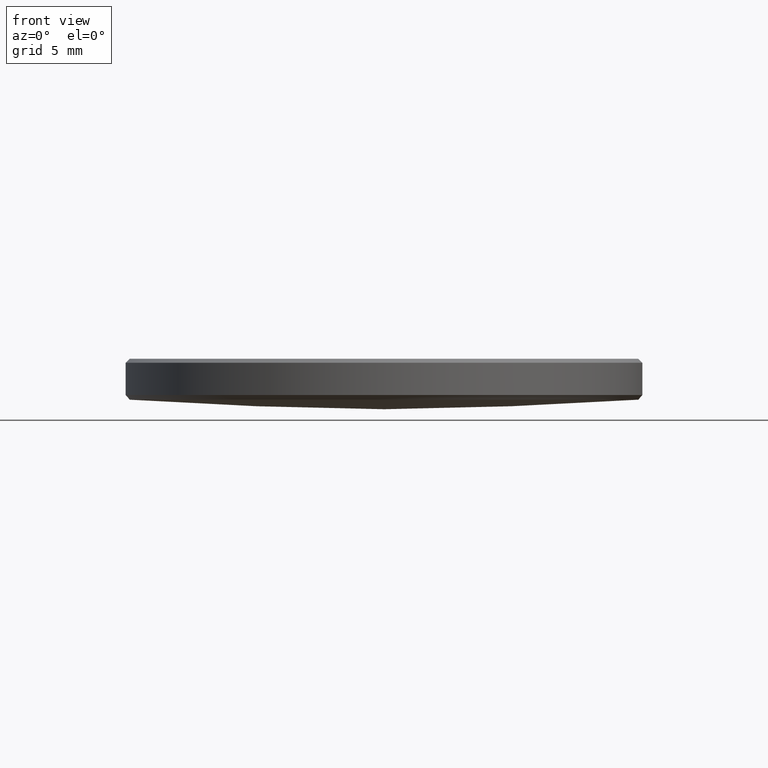
[diagram: clean part render]
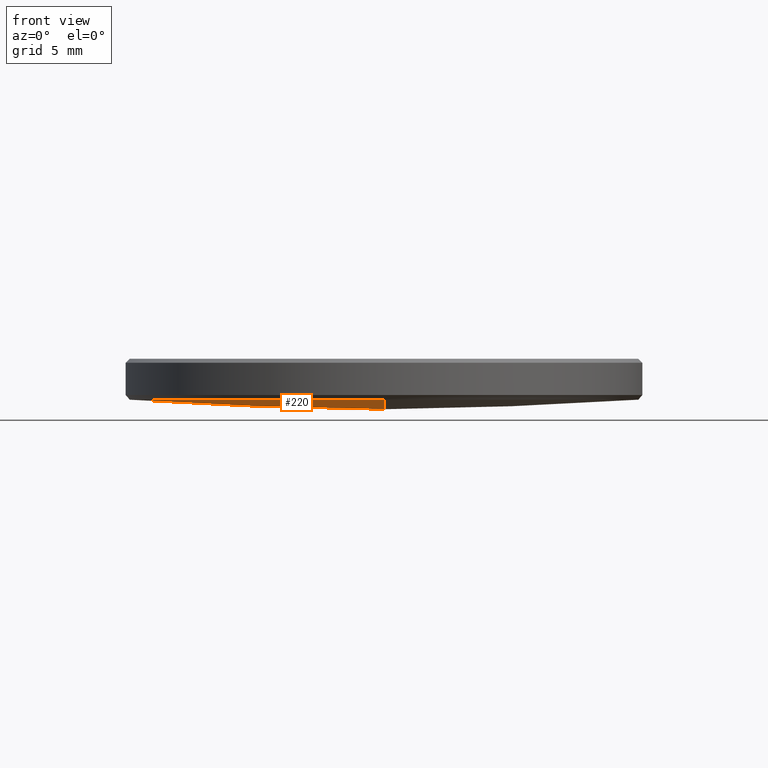
[diagram: same view with one face highlighted and labeled with its STEP entity id]
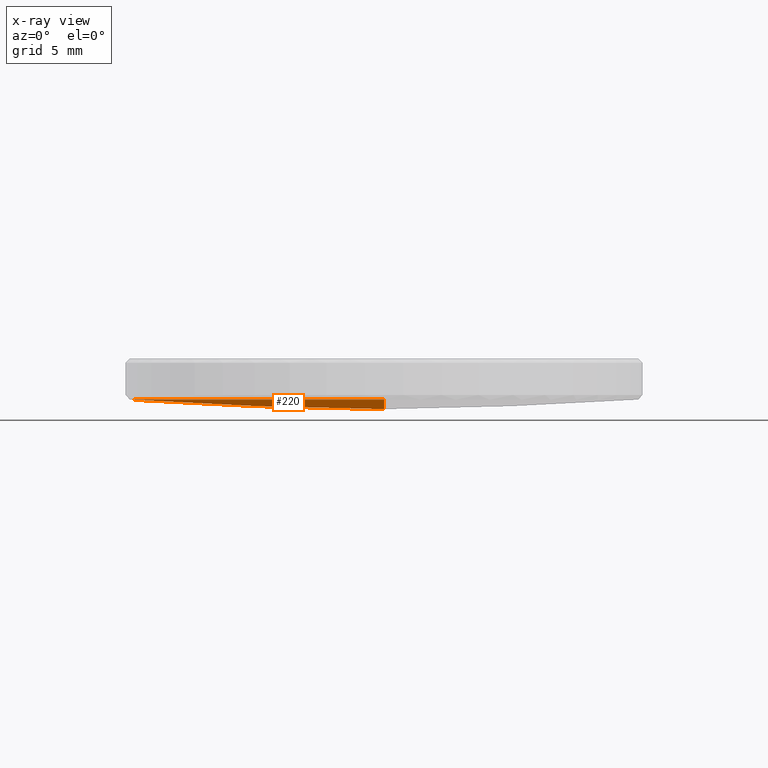
[diagram: x-ray of the same camera — body ghosted, the highlighted face saturated]
A machine part, front view. The second image highlights one B-rep face of the part: STEP entity #220.
The next image is the same camera in x-ray: the body ghosted, the highlighted face saturated — about 0% of this face is hidden behind the body in this view.
In plain terms, the highlighted spherical surface has radius 166.75 mm.
Its self-contained STEP definition (entity closure, byte-faithful):
#16 = EDGE_CURVE ( 'NONE', #39, #75, #314, .T. ) ;
#18 = ORIENTED_EDGE ( 'NONE', *, *, #188, .F. ) ;
#31 = CARTESIAN_POINT ( 'NONE',  ( 0.000000000000000000, 0.000000000000000000, 170.2656684345869564 ) ) ;
#32 = CARTESIAN_POINT ( 'NONE',  ( 0.000000000000000000, 0.000000000000000000, 3.984896188597097932 ) ) ;
#39 = VERTEX_POINT ( 'NONE', #179 ) ;
#45 = EDGE_LOOP ( 'NONE', ( #18, #48, #125, #83 ) ) ;
#48 = ORIENTED_EDGE ( 'NONE', *, *, #122, .T. ) ;
#51 = VERTEX_POINT ( 'NONE', #77 ) ;
#55 = CARTESIAN_POINT ( 'NONE',  ( 0.000000000000000000, 0.000000000000000000, 170.2656684345869564 ) ) ;
#67 = AXIS2_PLACEMENT_3D ( 'NONE', #31, #207, #231 ) ;
#75 = VERTEX_POINT ( 'NONE', #157 ) ;
#77 = CARTESIAN_POINT ( 'NONE',  ( 0.000000000000000000, 12.50069123197775767, 3.984896188597097932 ) ) ;
#83 = ORIENTED_EDGE ( 'NONE', *, *, #108, .T. ) ;
#86 = CARTESIAN_POINT ( 'NONE',  ( 0.000000000000000000, 0.000000000000000000, 3.984896188597097932 ) ) ;
#89 = AXIS2_PLACEMENT_3D ( 'NONE', #32, #258, #109 ) ;
#101 = CIRCLE ( 'NONE', #214, 166.7500000000000000 ) ;
#108 = EDGE_CURVE ( 'NONE', #75, #51, #241, .T. ) ;
#109 = DIRECTION ( 'NONE',  ( 1.000000000000000000, 0.000000000000000000, 0.000000000000000000 ) ) ;
#122 = EDGE_CURVE ( 'NONE', #176, #39, #101, .T. ) ;
#125 = ORIENTED_EDGE ( 'NONE', *, *, #16, .T. ) ;
#138 = DIRECTION ( 'NONE',  ( -1.000000000000000000, 1.224646799147353207E-16, 0.000000000000000000 ) ) ;
#157 = CARTESIAN_POINT ( 'NONE',  ( -12.50069123197759424, 1.543097292677106632E-15, 3.984896188597097932 ) ) ;
#158 = DIRECTION ( 'NONE',  ( 0.000000000000000000, 0.000000000000000000, -1.000000000000000000 ) ) ;
#175 = AXIS2_PLACEMENT_3D ( 'NONE', #86, #184, #210 ) ;
#176 = VERTEX_POINT ( 'NONE', #251 ) ;
#179 = CARTESIAN_POINT ( 'NONE',  ( -1.530893150437094356E-15, -12.50069123197775767, 3.984896188597097932 ) ) ;
#184 = DIRECTION ( 'NONE',  ( 0.000000000000000000, 0.000000000000000000, -1.000000000000000000 ) ) ;
#187 = AXIS2_PLACEMENT_3D ( 'NONE', #304, #201, #158 ) ;
#188 = EDGE_CURVE ( 'NONE', #176, #51, #310, .T. ) ;
#201 = DIRECTION ( 'NONE',  ( 1.000000000000000000, -0.000000000000000000, 0.000000000000000000 ) ) ;
#207 = DIRECTION ( 'NONE',  ( -1.000000000000000000, 0.000000000000000000, 0.000000000000000000 ) ) ;
#210 = DIRECTION ( 'NONE',  ( 1.000000000000000000, 0.000000000000000000, 0.000000000000000000 ) ) ;
#214 = AXIS2_PLACEMENT_3D ( 'NONE', #55, #138, #305 ) ;
#220 = ADVANCED_FACE ( 'NONE', ( #255 ), #276, .T. ) ;
#231 = DIRECTION ( 'NONE',  ( 0.000000000000000000, 1.000000000000000000, 0.000000000000000000 ) ) ;
#241 = CIRCLE ( 'NONE', #89, 12.50069123197759424 ) ;
#251 = CARTESIAN_POINT ( 'NONE',  ( 0.000000000000000000, 1.021049268789105718E-14, 3.515668434586949331 ) ) ;
#255 = FACE_OUTER_BOUND ( 'NONE', #45, .T. ) ;
#258 = DIRECTION ( 'NONE',  ( 0.000000000000000000, 0.000000000000000000, -1.000000000000000000 ) ) ;
#276 = SPHERICAL_SURFACE ( 'NONE', #67, 166.7500000000000000 ) ;
#304 = CARTESIAN_POINT ( 'NONE',  ( 0.000000000000000000, 0.000000000000000000, 170.2656684345869564 ) ) ;
#305 = DIRECTION ( 'NONE',  ( -1.224646799147353207E-16, -1.000000000000000000, 0.000000000000000000 ) ) ;
#310 = CIRCLE ( 'NONE', #187, 166.7500000000000000 ) ;
#314 = CIRCLE ( 'NONE', #175, 12.50069123197759424 ) ;